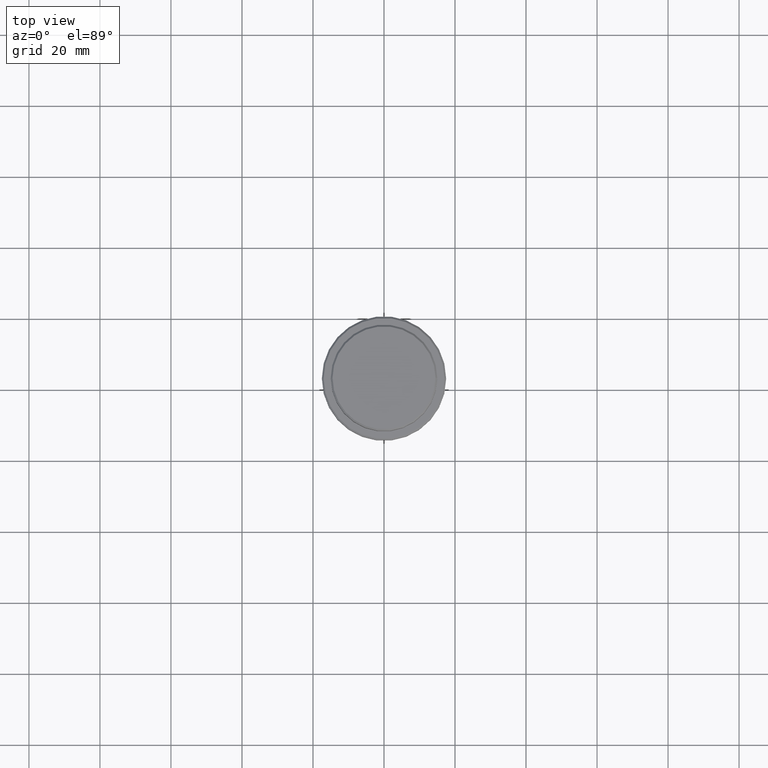
[diagram: clean part render]
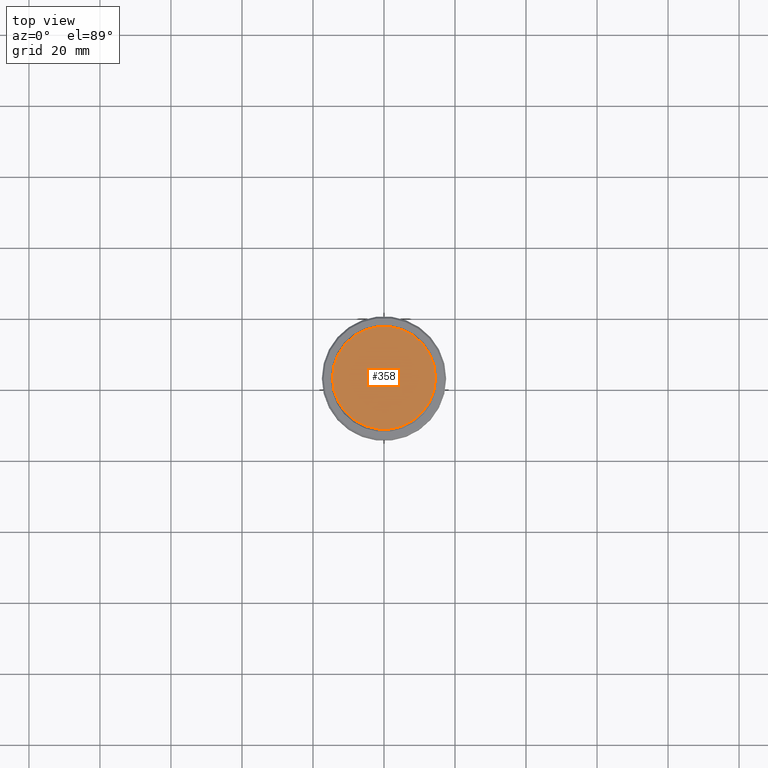
[diagram: same view with one face highlighted and labeled with its STEP entity id]
A machine part, top view. The second image highlights one B-rep face of the part: STEP entity #358.
In plain terms, the highlighted planar face has unit normal (0, -0, 1).
Its self-contained STEP definition (entity closure, byte-faithful):
#1 = CARTESIAN_POINT ( 'NONE',  ( 0.000000000000000000, 0.000000000000000000, 0.000000000000000000 ) ) ;
#115 = EDGE_CURVE ( 'NONE', #326, #1127, #736, .T. ) ;
#129 = CIRCLE ( 'NONE', #1295, 14.49999999999998401 ) ;
#175 = EDGE_CURVE ( 'NONE', #1127, #326, #129, .T. ) ;
#294 = FACE_OUTER_BOUND ( 'NONE', #981, .T. ) ;
#326 = VERTEX_POINT ( 'NONE', #795 ) ;
#358 = ADVANCED_FACE ( 'NONE', ( #294 ), #732, .T. ) ;
#431 = DIRECTION ( 'NONE',  ( 1.000000000000000000, 0.000000000000000000, 0.000000000000000000 ) ) ;
#455 = AXIS2_PLACEMENT_3D ( 'NONE', #1, #633, #972 ) ;
#526 = AXIS2_PLACEMENT_3D ( 'NONE', #609, #833, #1266 ) ;
#542 = CARTESIAN_POINT ( 'NONE',  ( 0.000000000000000000, 0.000000000000000000, 0.000000000000000000 ) ) ;
#609 = CARTESIAN_POINT ( 'NONE',  ( 0.000000000000000000, 0.000000000000000000, 0.000000000000000000 ) ) ;
#633 = DIRECTION ( 'NONE',  ( -0.000000000000000000, -0.000000000000000000, 1.000000000000000000 ) ) ;
#684 = CARTESIAN_POINT ( 'NONE',  ( -14.49999999999998401, 0.000000000000000000, 0.000000000000000000 ) ) ;
#732 = PLANE ( 'NONE',  #526 ) ;
#736 = CIRCLE ( 'NONE', #455, 14.49999999999998401 ) ;
#795 = CARTESIAN_POINT ( 'NONE',  ( 14.49999999999998401, 1.806354028742345013E-15, 0.000000000000000000 ) ) ;
#833 = DIRECTION ( 'NONE',  ( 0.000000000000000000, -0.000000000000000000, 1.000000000000000000 ) ) ;
#972 = DIRECTION ( 'NONE',  ( 1.000000000000000000, 0.000000000000000000, 0.000000000000000000 ) ) ;
#981 = EDGE_LOOP ( 'NONE', ( #1267, #1000 ) ) ;
#1000 = ORIENTED_EDGE ( 'NONE', *, *, #115, .T. ) ;
#1127 = VERTEX_POINT ( 'NONE', #684 ) ;
#1266 = DIRECTION ( 'NONE',  ( 1.000000000000000000, 0.000000000000000000, 0.000000000000000000 ) ) ;
#1267 = ORIENTED_EDGE ( 'NONE', *, *, #175, .T. ) ;
#1295 = AXIS2_PLACEMENT_3D ( 'NONE', #542, #1408, #431 ) ;
#1408 = DIRECTION ( 'NONE',  ( -0.000000000000000000, -0.000000000000000000, 1.000000000000000000 ) ) ;